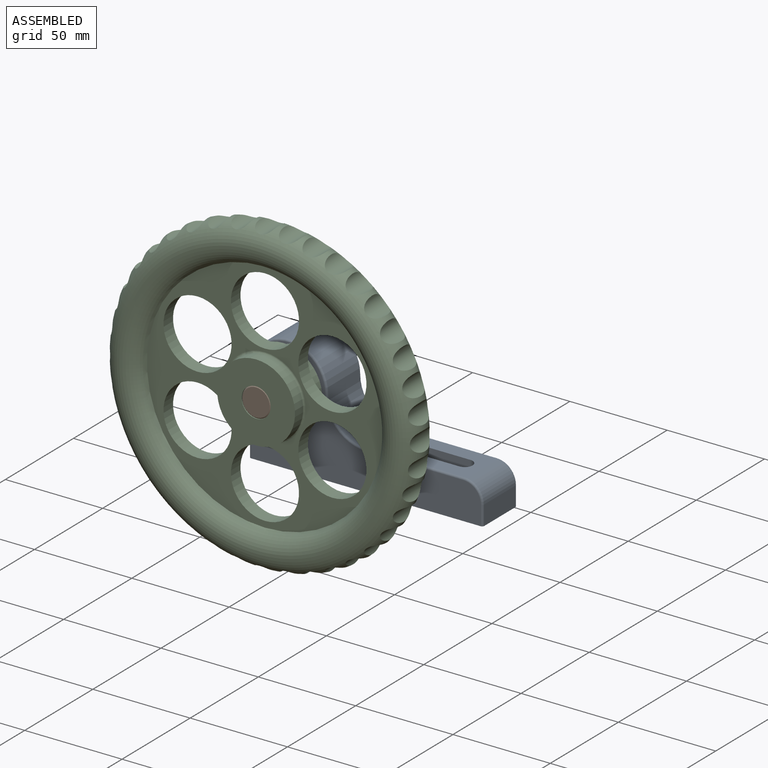
[diagram: assembled view]
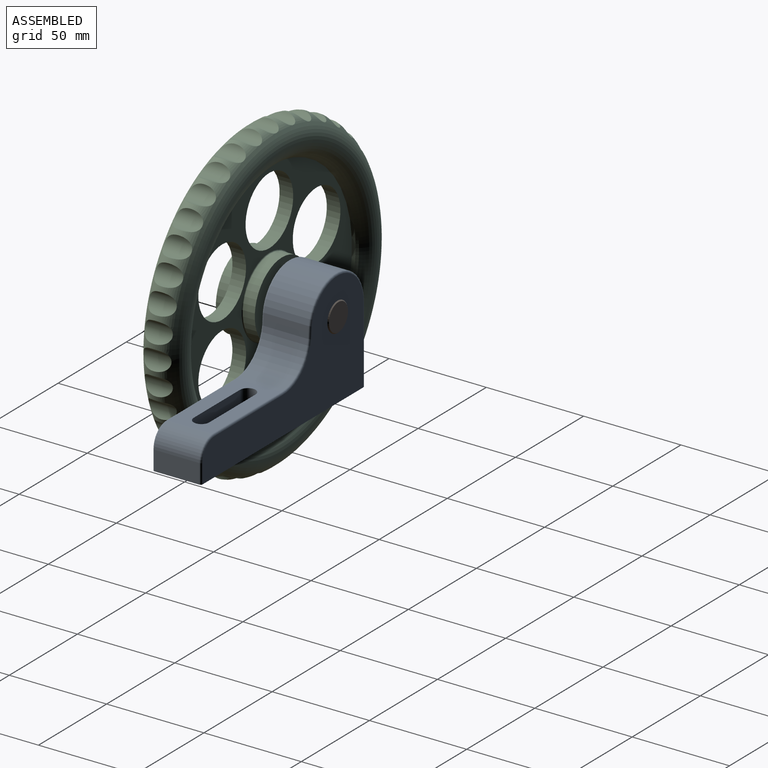
[diagram: assembled view, second angle]
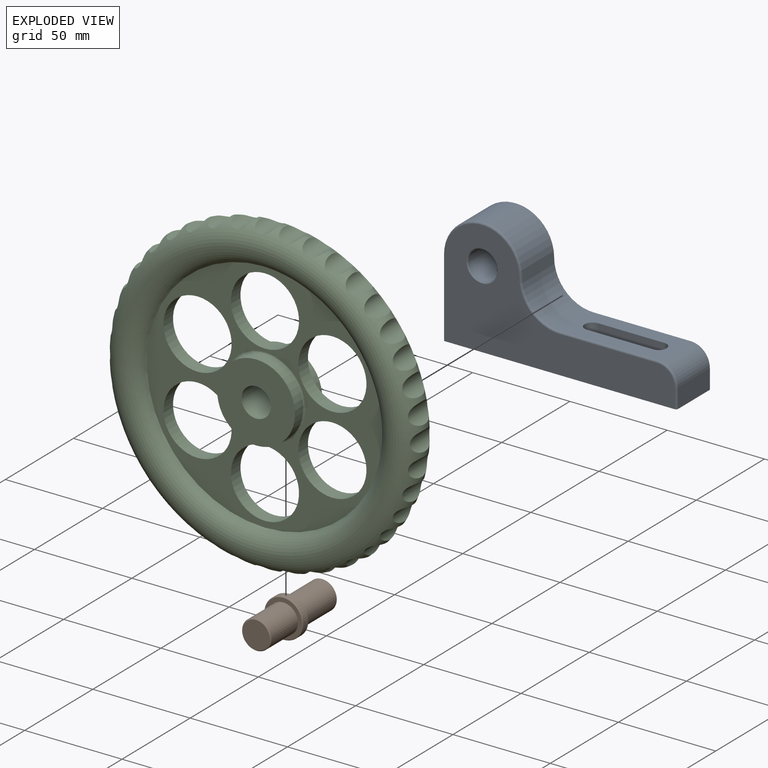
[diagram: exploded view]
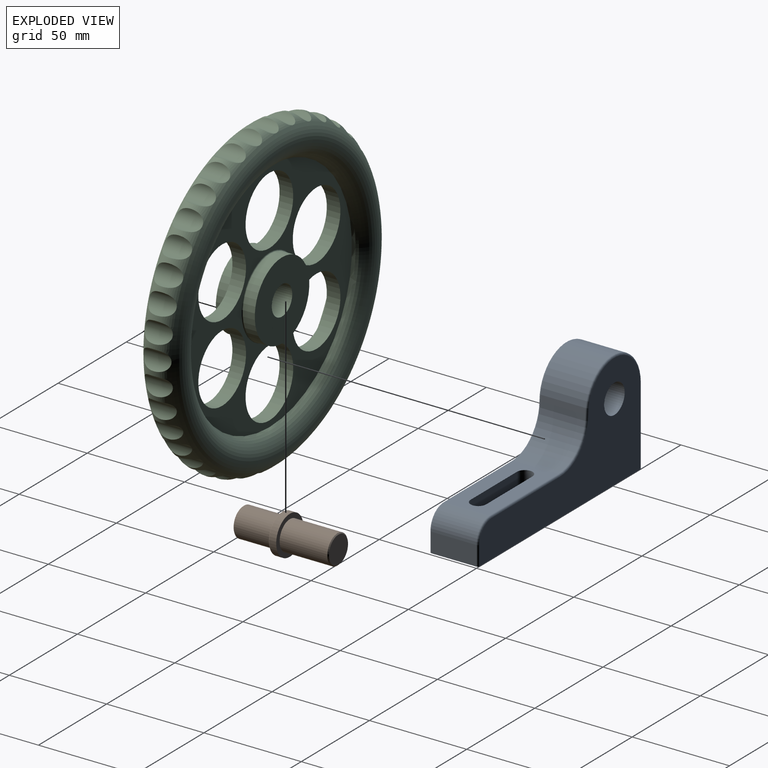
[diagram: exploded view, second angle]
ASSEMBLY  parts=3 mates=2
PART A: 41 faces, bbox 122.5x25x61.6 mm
  f0: plane 120x25mm, normal (0,0,-1), area 699.1mm2, adj f3,f7,f8,f9,f16,f20,f21,f22
  f1: plane 47x13mm, normal (0,0,-1), area 252.5mm2, adj f11,f12,f13,f14,f24,f25,f26,f27
  f2: plane 50x23mm, normal (0,0,1), area 827.7mm2, adj f4,f5,f11,f12,f13,f14,f31,f36
  f3: plane 23x10mm, normal (1,0,0), area 230mm2, adj f0,f4,f33,f34
  f4: cylinder r=10mm len=23mm, axis (0,1,0), area 361.3mm2, adj f2,f3,f32,f35
  f5: cylinder r=20mm len=23mm, axis (0,1,0), area 722.6mm2, adj f2,f6,f30,f37
  f6: cylinder r=20mm len=40mm, axis (0,1,0), area 1445.1mm2, adj f5,f7,f29,f38
  f7: plane 40x23mm, normal (-1,0,0), area 920mm2, adj f0,f6,f28,f39
  f8: plane 118x59mm, normal (0,-1,0), area 3483.3mm2, adj f0,f28,f29,f30,f31,f32,f33,f40
  f9: plane 118x59mm, normal (0,1,0), area 3507.6mm2, adj f0,f10,f34,f35,f36,f37,f38,f39
  f10: cylinder r=7.5mm len=24.5mm, axis (0,-1,0), area 1154.5mm2, adj f9,f40
  f11: plane 34x20mm, normal (0,-1,0), area 680mm2, adj f1,f2,f12,f14
  f12: cylinder r=4mm len=20mm, axis (0,0,1), area 251.3mm2, adj f1,f2,f11,f13
  f13: plane 34x20mm, normal (0,1,0), area 680mm2, adj f1,f2,f12,f14
  f14: cylinder r=4mm len=20mm, axis (0,0,1), area 251.3mm2, adj f1,f2,f11,f13
  f15: plane 50x20mm, normal (0,0,-1), area 425.3mm2, adj f17,f18,f21,f22,f24,f25,f26,f27
  f16: plane 20x10mm, normal (-1,0,0), area 200mm2, adj f0,f17,f21,f22
  f17: cylinder r=7.5mm len=20mm, axis (0,1,0), area 235.6mm2, adj f15,f16,f21,f22
  f18: cylinder r=22.5mm len=22.5mm, axis (0,1,0), area 706.9mm2, adj f15,f19,f21,f22
  f19: cylinder r=17.5mm len=35mm, axis (0,1,0), area 1099.6mm2, adj f18,f20,f21,f22
  f20: plane 40x20mm, normal (1,0,0), area 800mm2, adj f0,f19,f21,f22
  f21: plane 115x57.5mm, normal (0,1,0), area 3063.5mm2, adj f0,f15,f16,f17,f18,f19,f20,f23
  f22: plane 115x57.5mm, normal (0,-1,0), area 3063.5mm2, adj f0,f15,f16,f17,f18,f19,f20,f23
  f23: cylinder r=10mm len=20mm, axis (0,-1,0), area 1256.6mm2, adj f21,f22
  f24: plane 34x17.5mm, normal (0,1,0), area 595mm2, adj f1,f15,f25,f27
  f25: cylinder r=6.5mm len=17.5mm, axis (0,0,1), area 357.4mm2, adj f1,f15,f24,f26
  f26: plane 34x17.5mm, normal (0,-1,0), area 595mm2, adj f1,f15,f25,f27
  f27: cylinder r=6.5mm len=17.5mm, axis (0,0,1), area 357.4mm2, adj f1,f15,f24,f26
  f28: cylinder r=1mm len=40mm, axis (0,0,1), area 62.8mm2, adj f0,f7,f8,f29
  f29: torus R=19mm, axis (0,-1,0), area 96.9mm2, adj f6,f8,f28,f30
  f30: torus R=21mm, axis (0,-1,0), area 50.2mm2, adj f5,f8,f29,f31
  f31: cylinder r=1mm len=50mm, axis (1,0,0), area 78.5mm2, adj f2,f8,f30,f32
  f32: torus R=9mm, axis (0,-1,0), area 23.8mm2, adj f4,f8,f31,f33
  f33: cylinder r=1mm len=10mm, axis (0,0,-1), area 15.7mm2, adj f0,f3,f8,f32
  f34: cylinder r=1mm len=10mm, axis (0,0,1), area 15.7mm2, adj f0,f3,f9,f35
  f35: torus R=9mm, axis (0,-1,0), area 23.8mm2, adj f4,f9,f34,f36
  f36: cylinder r=1mm len=50mm, axis (-1,0,0), area 78.5mm2, adj f2,f9,f35,f37
  f37: torus R=21mm, axis (0,-1,0), area 50.2mm2, adj f5,f9,f36,f38
  f38: torus R=19mm, axis (0,-1,0), area 96.9mm2, adj f6,f9,f37,f39
  f39: cylinder r=1mm len=40mm, axis (0,0,-1), area 62.8mm2, adj f0,f7,f9,f38
  f40: cone r=7.5mm half-angle=45deg, axis (0,-1,0), area 34.4mm2, adj f8,f10
PART B: 10 faces, bbox 21.6x49x21.6 mm
  f0: plane 14x14mm, normal (0,-1,0), area 153.9mm2, adj f7
  f1: plane 14x14mm, normal (0,1,0), area 153.9mm2, adj f8
  f2: cylinder r=7.5mm len=24.5mm, axis (0,-1,0), area 1154.5mm2, adj f3,f8
  f3: plane 20x20mm, normal (0,1,0), area 137.4mm2, adj f2,f4
  f4: cylinder r=10mm len=20mm, axis (0,-1,0), area 219.9mm2, adj f3,f9
  f5: plane 19x19mm, normal (0,-1,0), area 106.8mm2, adj f6,f9
  f6: cylinder r=7.5mm len=19.5mm, axis (0,-1,0), area 918.9mm2, adj f5,f7
  f7: cone r=7mm half-angle=45deg, axis (0,1,0), area 32.2mm2, adj f0,f6
  f8: cone r=7.5mm half-angle=45deg, axis (0,-1,0), area 32.2mm2, adj f1,f2
  f9: torus R=9.5mm, axis (0,1,0), area 48.5mm2, adj f4,f5
PART C: 57 faces, bbox 173.2x20x173.2 mm
  f0: plane 121.27x121.27mm, normal (0,-1,0), area 4402.6mm2, adj f7,f8,f9,f10,f11,f12,f13,f16
  f1: cylinder r=20mm len=40mm, axis (0,-1,0), area 754mm2, adj f2,f14
  f2: plane 40x40mm, normal (0,-1,0), area 1079.9mm2, adj f1,f3
  f3: cylinder r=7.5mm len=20mm, axis (0,-1,0), area 942.5mm2, adj f2,f4
  f4: plane 40x40mm, normal (0,1,0), area 1079.9mm2, adj f3,f5
  f5: cylinder r=20mm len=40mm, axis (0,-1,0), area 754mm2, adj f4,f15
  f6: plane 121.27x121.27mm, normal (0,1,0), area 4456.5mm2, adj f7,f8,f9,f10,f11,f12,f13,f15
  f7: torus R=70mm, axis (0,-1,0), area 19651.5mm2, adj f0,f6,f17,f18,f19,f20,f21,f22
  f8: cylinder r=17.5mm len=35mm, axis (0,-1,0), area 769.7mm2, adj f0,f6
  f9: cylinder r=17.5mm len=35mm, axis (0,-1,0), area 769.7mm2, adj f0,f6
  f10: cylinder r=17.5mm len=35mm, axis (0,-1,0), area 769.7mm2, adj f0,f6
  f11: cylinder r=17.5mm len=35mm, axis (0,-1,0), area 769.7mm2, adj f0,f6
  f12: cylinder r=17.5mm len=35mm, axis (0,-1,0), area 769.7mm2, adj f0,f6
  f13: cylinder r=17.5mm len=35mm, axis (0,-1,0), area 769.7mm2, adj f0,f6
  f14: cone r=20mm half-angle=45deg, axis (0,1,0), area 37mm2, adj f1,f16
  f15: torus R=20.5mm, axis (0,-1,0), area 99.6mm2, adj f5,f6
  f16: torus R=20.91mm, axis (0,1,0), area 101.4mm2, adj f0,f14
  f17: cylinder r=6mm len=14.28mm, axis (0,-1,0), area 137.9mm2, adj f7
  f18: cylinder r=6mm len=14.28mm, axis (0,-1,0), area 137.8mm2, adj f7
  f19: cylinder r=6mm len=14.28mm, axis (0,-1,0), area 137.8mm2, adj f7
  f20: cylinder r=6mm len=14.29mm, axis (0,-1,0), area 137.9mm2, adj f7
  f21: cylinder r=6mm len=14.28mm, axis (0,-1,0), area 137.9mm2, adj f7
  f22: cylinder r=6mm len=14.28mm, axis (0,-1,0), area 137.9mm2, adj f7
  f23: cylinder r=6mm len=14.28mm, axis (0,-1,0), area 137.8mm2, adj f7
  f24: cylinder r=6mm len=14.28mm, axis (0,-1,0), area 137.9mm2, adj f7
  f25: cylinder r=6mm len=14.28mm, axis (0,-1,0), area 137.8mm2, adj f7
  f26: cylinder r=6mm len=14.28mm, axis (0,-1,0), area 137.8mm2, adj f7
  f27: cylinder r=6mm len=14.28mm, axis (0,-1,0), area 137.8mm2, adj f7
  f28: cylinder r=6mm len=14.28mm, axis (0,-1,0), area 137.8mm2, adj f7
  f29: cylinder r=6mm len=14.28mm, axis (0,-1,0), area 137.8mm2, adj f7
  f30: cylinder r=6mm len=14.29mm, axis (0,-1,0), area 137.9mm2, adj f7
  f31: cylinder r=6mm len=14.28mm, axis (0,-1,0), area 137.9mm2, adj f7
  f32: cylinder r=6mm len=14.28mm, axis (0,-1,0), area 137.8mm2, adj f7
  f33: cylinder r=6mm len=14.28mm, axis (0,-1,0), area 137.9mm2, adj f7
  f34: cylinder r=6mm len=14.28mm, axis (0,-1,0), area 137.9mm2, adj f7
  f35: cylinder r=6mm len=14.28mm, axis (0,-1,0), area 137.8mm2, adj f7
  f36: cylinder r=6mm len=14.28mm, axis (0,-1,0), area 137.8mm2, adj f7
  f37: cylinder r=6mm len=14.28mm, axis (0,-1,0), area 137.9mm2, adj f7
  f38: cylinder r=6mm len=14.28mm, axis (0,-1,0), area 137.9mm2, adj f7
  f39: cylinder r=6mm len=14.28mm, axis (0,-1,0), area 137.9mm2, adj f7
  f40: cylinder r=6mm len=14.28mm, axis (0,-1,0), area 137.9mm2, adj f7
  f41: cylinder r=6mm len=14.28mm, axis (0,-1,0), area 137.8mm2, adj f7
  f42: cylinder r=6mm len=14.28mm, axis (0,-1,0), area 137.8mm2, adj f7
  f43: cylinder r=6mm len=14.28mm, axis (0,-1,0), area 137.9mm2, adj f7
  f44: cylinder r=6mm len=14.28mm, axis (0,-1,0), area 137.9mm2, adj f7
  f45: cylinder r=6mm len=14.28mm, axis (0,-1,0), area 137.9mm2, adj f7
  f46: cylinder r=6mm len=14.28mm, axis (0,-1,0), area 137.9mm2, adj f7
  f47: cylinder r=6mm len=14.28mm, axis (0,-1,0), area 137.9mm2, adj f7
  f48: cylinder r=6mm len=14.28mm, axis (0,-1,0), area 137.8mm2, adj f7
  f49: cylinder r=6mm len=14.28mm, axis (0,-1,0), area 137.9mm2, adj f7
  f50: cylinder r=6mm len=14.28mm, axis (0,-1,0), area 137.9mm2, adj f7
  f51: cylinder r=6mm len=14.28mm, axis (0,-1,0), area 137.9mm2, adj f7
  f52: cylinder r=6mm len=14.28mm, axis (0,-1,0), area 137.8mm2, adj f7
  f53: cylinder r=6mm len=14.28mm, axis (0,-1,0), area 137.9mm2, adj f7
  f54: cylinder r=6mm len=14.28mm, axis (0,-1,0), area 137.9mm2, adj f7
  f55: cylinder r=6mm len=14.28mm, axis (0,-1,0), area 137.8mm2, adj f7
  f56: cylinder r=6mm len=14.29mm, axis (0,-1,0), area 137.8mm2, adj f7
PLACE A t=(-30.26,8.12,-108.97)mm
PLACE B t=(-57.86,-17.24,-68.97)mm
PLACE C t=(-57.86,-30.38,-68.97)mm
MATE fastened A.f6 <-> B.f2  axis (0,-1,0) through (-57.86,-16.38,-68.97)mm
MATE revolute C.f1 <-> B.f2  axis (0,1,0) through (-57.86,-20.38,-68.97)mm
